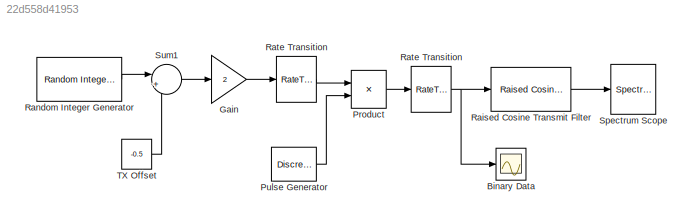
MODEL slx_22d558d41953
KIND model
BLOCK [RateTransition]  Rate Transition
  OutPortSampleTime = 1e-3
BLOCK [Scope] Binary Data
  DataFormat = StructureWithTime
  Floating = off
  NumInputPorts = 1
  Ports = [1]
  SampleTime = 0
  ShowLegends = off
  YMax = 1.5
  YMin = -1.5
BLOCK [Gain] Gain
  Gain = 2
  OutDataTypeStr = Inherit: Inherit via internal rule
  ParamDataTypeStr = Inherit: Inherit via internal rule
  SaturateOnIntegerOverflow = off
BLOCK [Product] Product
  InputSameDT = off
  OutDataTypeStr = Inherit: Inherit via internal rule
  Ports = [2, 1]
  SaturateOnIntegerOverflow = off
BLOCK [DiscretePulseGenerator] Pulse Generator
  Period = 1e-3
  Ports = [0, 1]
  PulseType = Time based
  PulseWidth = 2
BLOCK [Reference] Raised Cosine Transmit Filter  REF=commfilt2/Raised Cosine
Transmit Filter
  D = 4
  InputProcessing = Inherited (this choice will be removed - see release notes)
  LockScale = off
  N = 50
  Ports = [1, 1]
  R = 0.5
  SourceBlock = commfilt2/Raised Cosine\nTransmit Filter
  SourceType = Raised Cosine Transmit Filter
  UserDataPersistent = on
  accumFracLength = 30
  accumMode = Inherit via internal rule
  accumWordLength = 32
  checkCoeff = off
  checkGain = User-specified
  coeffFracLength = 15
  coeffMode = Same word length as input
  coeffWordLength = 16
  currentFiltSpan = 2*(4)
  filtSpan = 2*(4)
  filtType = Normal
  filterGain = (5)*rcfiltgaincompat(gcbh)
  framing = Maintain input frame size
  launchFVT = off
  outputFracLength = 15
  outputMode = Same as accumulator
  outputWordLength = 16
  overflowMode = off
  prodOutputFracLength = 30
  prodOutputMode = Inherit via internal rule
  prodOutputWordLength = 32
  roundingMode = Floor
  sampMode = Mute
  saveAsFlag = 0
  variableName = rcTxFilt
BLOCK [Reference] Random Integer Generator  REF=commrandsrc2/Random Integer
Generator
  Ports = [0, 1]
  SourceBlock = commrandsrc2/Random Integer\nGenerator
  SourceType = Random Integer Generator
  Ts = 1e-3
  frameBased = off
  mul = 2
  orient = off
  outDataType = double
  sampPerFrame = 50
  seed = randseed
BLOCK [RateTransition] Rate Transition
  OutPortSampleTime = 2e-5
BLOCK [SpectrumAnalyzer] Spectrum Scope
  Ports = [1]
BLOCK [Sum] Sum1
  IconShape = round
  InputSameDT = off
  Inputs = |++
  OutDataTypeStr = Inherit: Inherit via internal rule
  Ports = [2, 1]
  SaturateOnIntegerOverflow = off
BLOCK [Constant] TX Offset
  Value = -0.5
NET  Rate Transition:1 -> Binary Data:1, Raised Cosine Transmit Filter:1
LINE Gain:1 -> Rate Transition:1
LINE Product:1 ->  Rate Transition:1
LINE Pulse Generator:1 -> Product:2
LINE Raised Cosine Transmit Filter:1 -> Spectrum Scope:1
LINE Random Integer Generator:1 -> Sum1:1
LINE Rate Transition:1 -> Product:1
LINE Sum1:1 -> Gain:1
LINE TX Offset:1 -> Sum1:2
note: NET lines group one-source signal fan-out (src -> all destinations, sorted); 1:1 wires keep LINE
